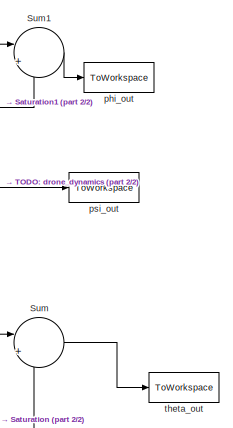
[diagram: root canvas - part 1/2, top right region]
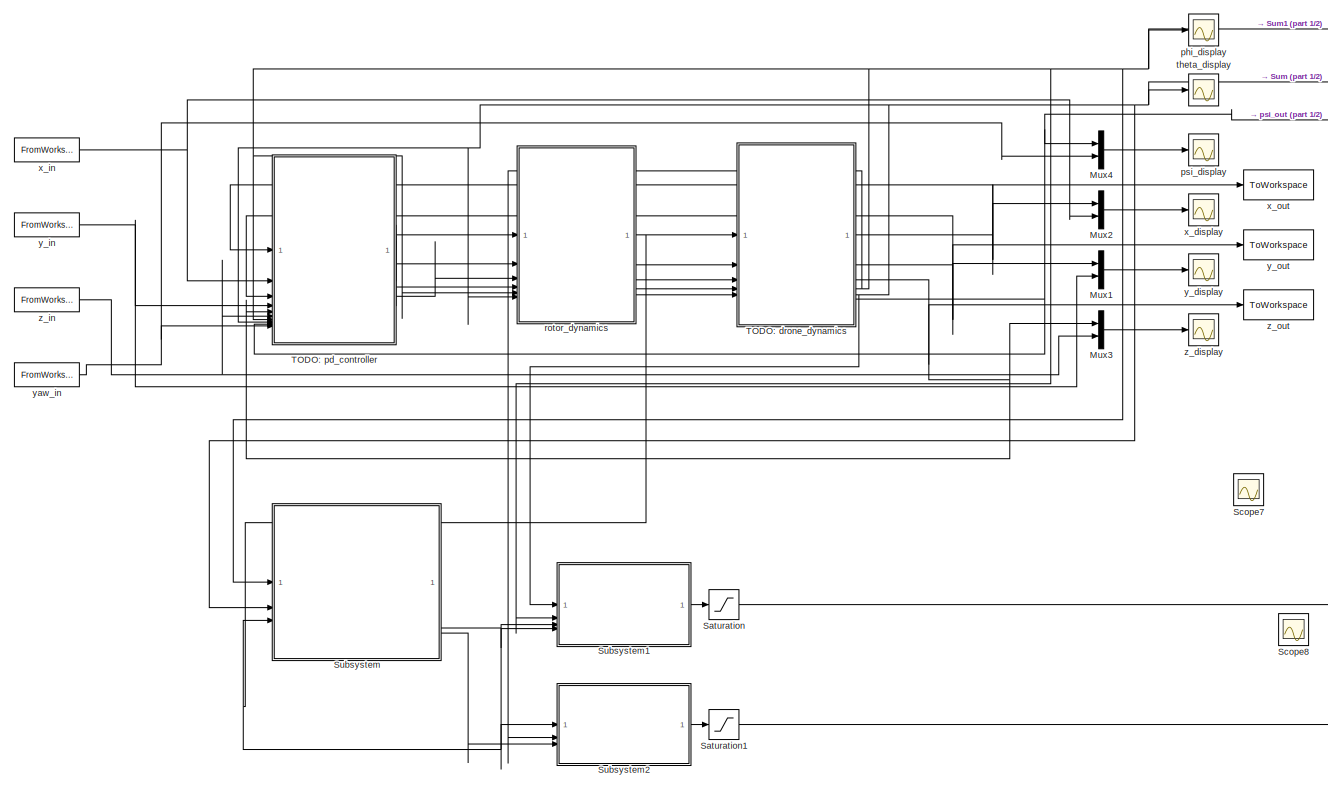
[diagram: root canvas - part 2/2, most of the canvas]
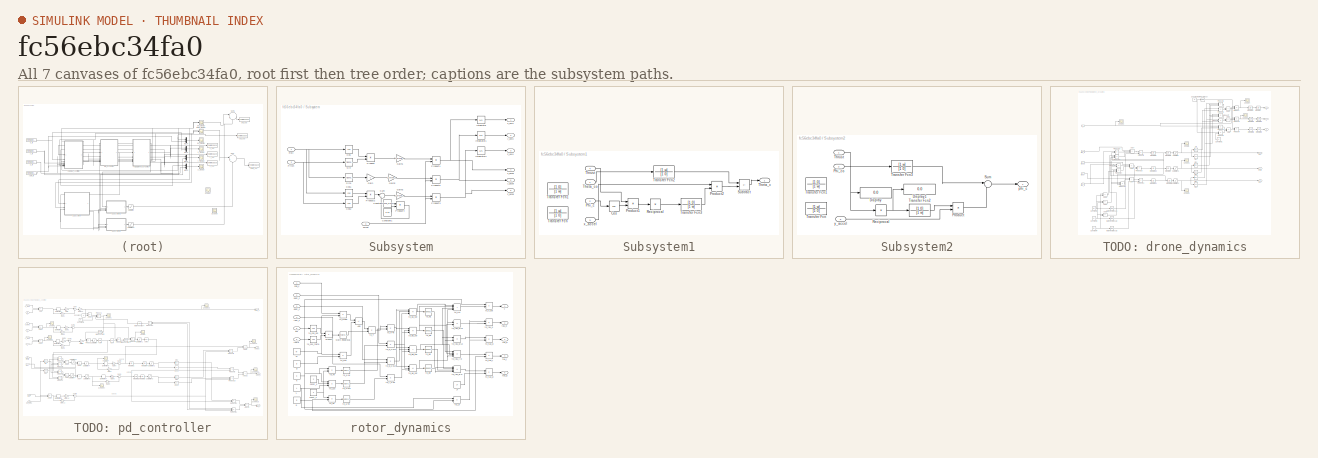
[diagram: thumbnail index - all 7 canvases of the model, root first then tree order]
MODEL slx_fc56ebc34fa0
KIND model
CONFIG AbsTol = auto
CONFIG EnableMultiTasking = on
CONFIG FixedStep = auto
CONFIG MaxStep = auto
CONFIG MinStep = auto
CONFIG RelTol = 1e-3
CONFIG SampleTimeConstraint = Unconstrained
CONFIG SolverName = ode45
CONFIG StartTime = 0.0
CONFIG StopTime = 50
BLOCK [Mux] Mux1
  DisplayOption = bar
  Inputs = 2
BLOCK [Mux] Mux2
  DisplayOption = bar
  Inputs = 2
BLOCK [Mux] Mux3
  DisplayOption = bar
  Inputs = 2
BLOCK [Mux] Mux4
  DisplayOption = bar
  Inputs = 2
BLOCK [Saturate] Saturation
  LowerLimit = -160
  UpperLimit = 160
BLOCK [Saturate] Saturation1
  LowerLimit = -160
  UpperLimit = 160
BLOCK [Scope] Scope7
  ActiveDisplayYMaximum = 2.5090035346084125
  ActiveDisplayYMinimum = -1.6883197970171271
  DataLoggingVariableName = ScopeData12
  Floating = off
  GraphicalSettings = {"AxesScalingProperties":{"AlignXAxis":"Center","AlignYAxis":"Center","AutoScaleXAxisLimits":false,"AxesScaling":"Manual","AxesScalingNumUpdates":10,"ExpandOnly":true,"ScaleAxesLimitsAtStop":false,"XAxisDataRange":100,"YAxisDataRange":80},"DisplayProperties":{"ColorOrder":["auto","auto","auto","auto","auto","auto","auto","auto","auto","auto","auto","auto","auto","auto","auto","auto","auto","auto",...<+1903ch>
  MultipleDisplayCache = [{"MaxYLimMag":10,"MaxYLimReal":2.5090035346084125,"MinYLimMag":0,"MinYLimReal":-1.6883197970171271,"PlotAsMagnitudePhase":false,"ShowGrid":true,"ShowLegend":false,"Title":"%<SignalLabel>","YLabel":""}]
  NumInputPorts = 1
  ScopeFrameLocation = window
  WasSavedAsWebScope = on
  WindowPosition = [42.000000,255.000000,560.000000,420.000000,]
BLOCK [Scope] Scope8
  ActiveDisplayYMaximum = 1.0700258804030376
  ActiveDisplayYMinimum = -0.67404865904457345
  DataLoggingVariableName = ScopeData10
  Floating = off
  GraphicalSettings = {"AxesScalingProperties":{"AlignXAxis":"Center","AlignYAxis":"Center","AutoScaleXAxisLimits":false,"AxesScaling":"Manual","AxesScalingNumUpdates":10,"ExpandOnly":true,"ScaleAxesLimitsAtStop":false,"XAxisDataRange":100,"YAxisDataRange":80},"DisplayProperties":{"ColorOrder":["auto","auto","auto","auto","auto","auto","auto","auto","auto","auto","auto","auto","auto","auto","auto","auto","auto","auto",...<+1903ch>
  MultipleDisplayCache = [{"MaxYLimMag":10,"MaxYLimReal":1.0700258804030376,"MinYLimMag":0,"MinYLimReal":-0.67404865904457345,"PlotAsMagnitudePhase":false,"ShowGrid":true,"ShowLegend":false,"Title":"%<SignalLabel>","YLabel":""}]
  NumInputPorts = 1
  ScopeFrameLocation = window
  WasSavedAsWebScope = on
  WindowPosition = [649.000000,248.000000,560.000000,420.000000,]
BLOCK [SubSystem] Subsystem
BLOCK [Constant] Subsystem/Constant
  Value = drone_mass
BLOCK [Constant] Subsystem/Constant1
  Value = 9.81
BLOCK [Trigonometry] Subsystem/Cos
  Operator = cos
BLOCK [Trigonometry] Subsystem/Cos1
  Operator = cos
BLOCK [Trigonometry] Subsystem/Cos2
  Operator = cos
BLOCK [Gain] Subsystem/Gain
  Gain = -1
BLOCK [Gain] Subsystem/Gain1
  Gain = 1/drone_mass
BLOCK [Gain] Subsystem/Gain2
  Gain = 1/drone_mass
BLOCK [Gain] Subsystem/Gain3
  Gain = 1/drone_mass
BLOCK [Integrator] Subsystem/Integrator
BLOCK [Integrator] Subsystem/Integrator1
BLOCK [Integrator] Subsystem/Integrator2
BLOCK [Inport] Subsystem/Pitch
  Port = 2
BLOCK [Product] Subsystem/Product
BLOCK [Product] Subsystem/Product1
BLOCK [Product] Subsystem/Product2
BLOCK [Product] Subsystem/Product3
BLOCK [Product] Subsystem/Product4
BLOCK [Product] Subsystem/Product5
BLOCK [Inport] Subsystem/Roll
BLOCK [Trigonometry] Subsystem/Sin
BLOCK [Trigonometry] Subsystem/Sin1
BLOCK [Sum] Subsystem/Sum
  Inputs = |+-
BLOCK [Inport] Subsystem/Thrust
  Port = 3
BLOCK [Outport] Subsystem/x_accel
  Port = 4
BLOCK [Outport] Subsystem/x_velo
BLOCK [Outport] Subsystem/y_accel
  Port = 5
BLOCK [Outport] Subsystem/y_velo
  Port = 2
BLOCK [Outport] Subsystem/z_accel
  Port = 6
BLOCK [Outport] Subsystem/z_velo
  Port = 3
BLOCK [SubSystem] Subsystem1
BLOCK [Trigonometry] Subsystem1/Cos
  Operator = cos
BLOCK [Inport] Subsystem1/Phi_c
  Port = 2
BLOCK [Product] Subsystem1/Product1
BLOCK [Product] Subsystem1/Product2
BLOCK [Product] Subsystem1/Reciprocal
  Inputs = /
BLOCK [Sum] Subsystem1/Subtract
  IconShape = rectangular
  Inputs = +-
BLOCK [Outport] Subsystem1/Theta_c
BLOCK [Inport] Subsystem1/Theta_co
BLOCK [Inport] Subsystem1/Thrust
  Port = 4
BLOCK [TransferFcn] Subsystem1/Transfer Fcn
  Denominator = [1 0]
  Numerator = [1 w]
BLOCK [TransferFcn] Subsystem1/Transfer Fcn1
  Denominator = [1 w]
  Numerator = [1 0]
BLOCK [TransferFcn] Subsystem1/Transfer Fcn2
  Denominator = [1 0]
  Numerator = [1 w]
BLOCK [TransferFcn] Subsystem1/Transfer Fcn3
  Denominator = [1 w]
  Numerator = [1 0]
BLOCK [Inport] Subsystem1/x_accel
  Port = 3
BLOCK [SubSystem] Subsystem2
BLOCK [Display] Subsystem2/Display
  Decimation = 1
BLOCK [Display] Subsystem2/Display1
  Decimation = 1
BLOCK [Inport] Subsystem2/Phi_co
  Port = 2
BLOCK [Product] Subsystem2/Product
BLOCK [Product] Subsystem2/Reciprocal
  Inputs = /
BLOCK [Sum] Subsystem2/Sum
  Inputs = |++
BLOCK [Inport] Subsystem2/Thrust
BLOCK [TransferFcn] Subsystem2/Transfer Fcn
  Denominator = [1 0]
  Numerator = [1 w]
BLOCK [TransferFcn] Subsystem2/Transfer Fcn1
  Denominator = [1 w]
  Numerator = [1 0]
BLOCK [TransferFcn] Subsystem2/Transfer Fcn2
  Denominator = [1 w]
  Numerator = [1 0]
BLOCK [TransferFcn] Subsystem2/Transfer Fcn3
  Denominator = [1 0]
  Numerator = [1 w]
BLOCK [Outport] Subsystem2/phi_c
BLOCK [Inport] Subsystem2/y_accel
  Port = 3
BLOCK [Sum] Sum
  Inputs = |++
BLOCK [Sum] Sum1
  Inputs = |++
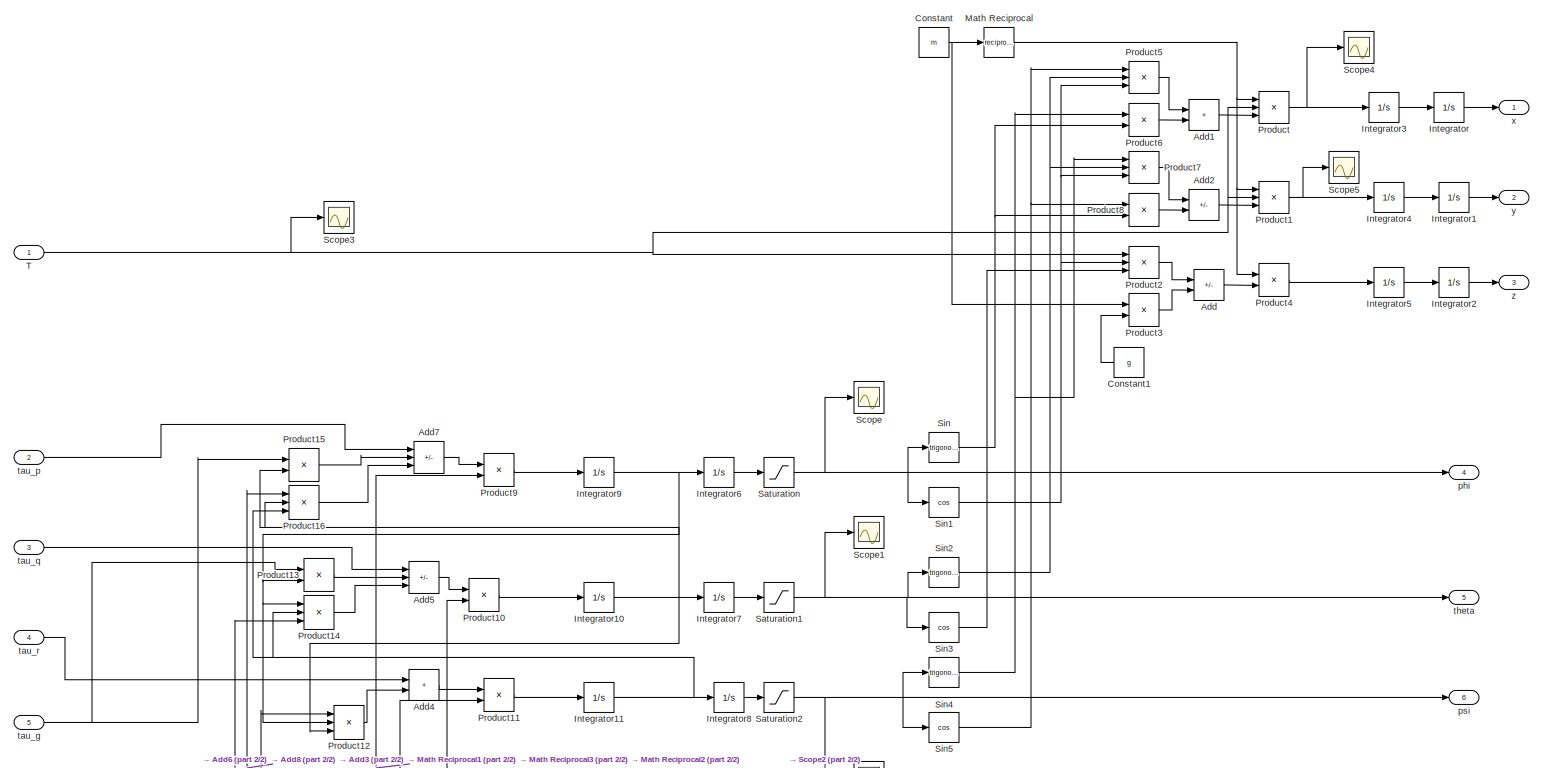
[diagram: TODO: drone_dynamics - part 1/2, full width, middle band]
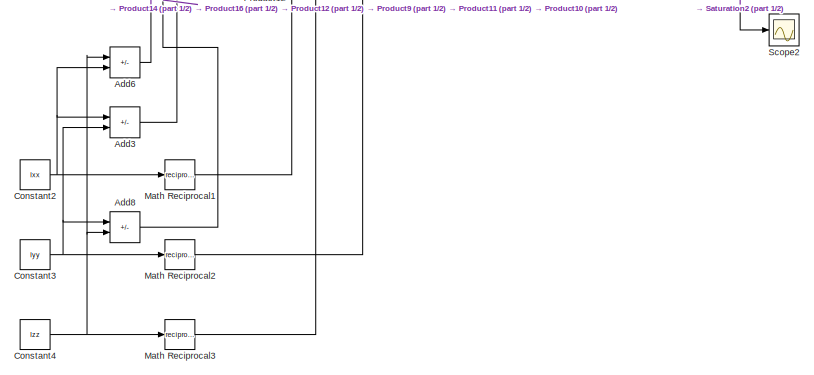
[diagram: TODO: drone_dynamics - part 2/2, bottom left region]
BLOCK [SubSystem] TODO: drone_dynamics
BLOCK [Sum] TODO: drone_dynamics/Add
  IconShape = rectangular
  Inputs = +-
BLOCK [Sum] TODO: drone_dynamics/Add1
  IconShape = rectangular
BLOCK [Sum] TODO: drone_dynamics/Add2
  IconShape = rectangular
  Inputs = +-
BLOCK [Sum] TODO: drone_dynamics/Add3
  IconShape = rectangular
  Inputs = +-
BLOCK [Sum] TODO: drone_dynamics/Add4
  IconShape = rectangular
BLOCK [Sum] TODO: drone_dynamics/Add5
  IconShape = rectangular
  Inputs = +-+
BLOCK [Sum] TODO: drone_dynamics/Add6
  IconShape = rectangular
  Inputs = +-
BLOCK [Sum] TODO: drone_dynamics/Add7
  IconShape = rectangular
  Inputs = +-+
BLOCK [Sum] TODO: drone_dynamics/Add8
  IconShape = rectangular
  Inputs = +-
BLOCK [Constant] TODO: drone_dynamics/Constant
  Value = m
BLOCK [Constant] TODO: drone_dynamics/Constant1
  Value = g
BLOCK [Constant] TODO: drone_dynamics/Constant2
  Value = Ixx
BLOCK [Constant] TODO: drone_dynamics/Constant3
  Value = Iyy
BLOCK [Constant] TODO: drone_dynamics/Constant4
  Value = Izz
BLOCK [Integrator] TODO: drone_dynamics/Integrator
BLOCK [Integrator] TODO: drone_dynamics/Integrator1
BLOCK [Integrator] TODO: drone_dynamics/Integrator10
BLOCK [Integrator] TODO: drone_dynamics/Integrator11
BLOCK [Integrator] TODO: drone_dynamics/Integrator2
BLOCK [Integrator] TODO: drone_dynamics/Integrator3
BLOCK [Integrator] TODO: drone_dynamics/Integrator4
BLOCK [Integrator] TODO: drone_dynamics/Integrator5
BLOCK [Integrator] TODO: drone_dynamics/Integrator6
BLOCK [Integrator] TODO: drone_dynamics/Integrator7
BLOCK [Integrator] TODO: drone_dynamics/Integrator8
  WrappedStateLowerValue = 0
  WrappedStateUpperValue = 2*pi
BLOCK [Integrator] TODO: drone_dynamics/Integrator9
BLOCK [Math] TODO: drone_dynamics/Math Reciprocal
  Operator = reciprocal
  SignedPower = on
BLOCK [Math] TODO: drone_dynamics/Math Reciprocal1
  Operator = reciprocal
  SignedPower = on
BLOCK [Math] TODO: drone_dynamics/Math Reciprocal2
  Operator = reciprocal
  SignedPower = on
BLOCK [Math] TODO: drone_dynamics/Math Reciprocal3
  Operator = reciprocal
  SignedPower = on
BLOCK [Product] TODO: drone_dynamics/Product
  Inputs = 3
BLOCK [Product] TODO: drone_dynamics/Product1
  Inputs = 3
BLOCK [Product] TODO: drone_dynamics/Product10
BLOCK [Product] TODO: drone_dynamics/Product11
BLOCK [Product] TODO: drone_dynamics/Product12
  Inputs = 3
BLOCK [Product] TODO: drone_dynamics/Product13
BLOCK [Product] TODO: drone_dynamics/Product14
  Inputs = 3
BLOCK [Product] TODO: drone_dynamics/Product15
BLOCK [Product] TODO: drone_dynamics/Product16
  Inputs = 3
BLOCK [Product] TODO: drone_dynamics/Product2
  Inputs = 3
BLOCK [Product] TODO: drone_dynamics/Product3
BLOCK [Product] TODO: drone_dynamics/Product4
BLOCK [Product] TODO: drone_dynamics/Product5
  Inputs = 3
BLOCK [Product] TODO: drone_dynamics/Product6
BLOCK [Product] TODO: drone_dynamics/Product7
  Inputs = 3
BLOCK [Product] TODO: drone_dynamics/Product8
BLOCK [Product] TODO: drone_dynamics/Product9
BLOCK [Saturate] TODO: drone_dynamics/Saturation
  LowerLimit = -1
  UpperLimit = 1
BLOCK [Saturate] TODO: drone_dynamics/Saturation1
  LowerLimit = -1
  UpperLimit = 1
BLOCK [Saturate] TODO: drone_dynamics/Saturation2
  LowerLimit = 0
  UpperLimit = 2*pi
BLOCK [Scope] TODO: drone_dynamics/Scope
  ActiveDisplayYMaximum = 3.15
  ActiveDisplayYMinimum = -3.15
  DataLoggingVariableName = ScopeData1
  Floating = off
  GraphicalSettings = {"GraphicalSettings":{"LegacySettings":true,"Style":{"AxesScalingProperties":{"ScaleAxesLimitsAtStop":false},"Style":{"AxesColor":"[0 0 0]","ChannelNames":[""],"ColorOrder":"[1 0.909803921568627 0.392156862745098;0.149019607843137 0.549019607843137 0.866666666666667;0.96078431372549 0.466666666666667 0.16078431372549;0.286274509803922 0.858823529411765 0.250980392156863;0.752941176470588 0.3607843...<+488ch>  <repeated x6 — deduplicated; at blocks: Scope, Scope17, Scope18, Scope19, Scope2, Scope3>
  MultipleDisplayCache = [{"MaxYLimMag":36.46515,"MaxYLimReal":3.15,"MinYLimMag":0,"MinYLimReal":-3.15,"PlotAsMagnitudePhase":false,"ShowGrid":true,"ShowLegend":false,"Title":"%<SignalLabel>","YLabel":""}]
  NumInputPorts = 1
  WasSavedAsWebScope = on
  WindowPosition = [1 54 1440 743]
BLOCK [Scope] TODO: drone_dynamics/Scope1
  ActiveDisplayYMaximum = 6E-10
  ActiveDisplayYMinimum = -4.8E-9
  DataLoggingVariableName = ScopeData2
  Floating = off
  GraphicalSettings = {"GraphicalSettings":{"LegacySettings":true,"Style":{"Style":{"AxesColor":"[0 0 0]","ChannelNames":[""],"ColorOrder":"[1 1 0.0666666666666667;0.0745098039215686 0.623529411764706 1;1 0.411764705882353 0.16078431372549;0.392156862745098 0.831372549019608 0.0745098039215686;0.717647058823529 0.274509803921569 1;0.0588235294117647 1 1;1 0.0745098039215686 0.650980392156863]","CurrentConfiguration":"e...<+343ch>
  MultipleDisplayCache = [{"MaxYLimMag":4.8E-9,"MaxYLimReal":6E-10,"MinYLimMag":0,"MinYLimReal":-4.8E-9,"PlotAsMagnitudePhase":false,"ShowGrid":true,"ShowLegend":false,"Title":"%<SignalLabel>","YLabel":""}]
  NumInputPorts = 1
  WasSavedAsWebScope = on
BLOCK [Scope] TODO: drone_dynamics/Scope2
  ActiveDisplayYMaximum = 7.08108
  ActiveDisplayYMinimum = -0.8979
  DataLoggingVariableName = ScopeData3
  Floating = off
  GraphicalSettings = {"GraphicalSettings":{"LegacySettings":true,"Style":{"Style":{"AxesColor":"[0 0 0]","ChannelNames":[""],"ColorOrder":"[1 0.909803921568627 0.392156862745098;0.149019607843137 0.549019607843137 0.866666666666667;0.96078431372549 0.466666666666667 0.16078431372549;0.286274509803922 0.858823529411765 0.250980392156863;0.752941176470588 0.36078431372549 0.984313725490196;0.423529411764706 0.9568627450...<+432ch>  <repeated x5 — deduplicated; at blocks: Scope2, Scope3, Scope4, Scope1, Scope16>
  MultipleDisplayCache = [{"MaxYLimMag":7.08108,"MaxYLimReal":7.08108,"MinYLimMag":0,"MinYLimReal":-0.8979,"PlotAsMagnitudePhase":false,"ShowGrid":true,"ShowLegend":false,"Title":"%<SignalLabel>","YLabel":""}]
  NumInputPorts = 1
  WasSavedAsWebScope = on
  WindowPosition = [1 54 1440 743]
BLOCK [Scope] TODO: drone_dynamics/Scope3
  ActiveDisplayYMaximum = 4.4753425626299984E+13
  ActiveDisplayYMinimum = -3.4849041226239738E+14
  DataLoggingVariableName = ScopeData4
  Floating = off
  MultipleDisplayCache = [{"MaxYLimMag":3.4849041226239738E+14,"MaxYLimReal":4.4753425626299984E+13,"MinYLimMag":0,"MinYLimReal":-3.4849041226239738E+14,"PlotAsMagnitudePhase":false,"ShowGrid":true,"ShowLegend":false,"Title":"%<SignalLabel>","YLabel":""}]
  NumInputPorts = 1
  WasSavedAsWebScope = on
BLOCK [Scope] TODO: drone_dynamics/Scope4
  ActiveDisplayYMaximum = 8.56477193990877E+11
  ActiveDisplayYMinimum = -1.5375275296905083E+12
  DataLoggingVariableName = ScopeData5
  Floating = off
  MultipleDisplayCache = [{"MaxYLimMag":1.5375275296905083E+12,"MaxYLimReal":8.56477193990877E+11,"MinYLimMag":0,"MinYLimReal":-1.5375275296905083E+12,"PlotAsMagnitudePhase":false,"ShowGrid":true,"ShowLegend":false,"Title":"%<SignalLabel>","YLabel":""}]
  NumInputPorts = 1
  WasSavedAsWebScope = on
BLOCK [Scope] TODO: drone_dynamics/Scope5
  DataLoggingVariableName = ScopeData6
  Floating = off
  GraphicalSettings = {"GraphicalSettings":{"LegacySettings":true,"Style":{"Style":{"CurrentConfiguration":"extmgr.ConfigurationSet","MinimizeControls":"false","PlotType":"Auto","Version":"2024b"}}}}
  NumInputPorts = 1
  WasSavedAsWebScope = on
BLOCK [Trigonometry] TODO: drone_dynamics/Sin
BLOCK [Trigonometry] TODO: drone_dynamics/Sin1
  Operator = cos
BLOCK [Trigonometry] TODO: drone_dynamics/Sin2
BLOCK [Trigonometry] TODO: drone_dynamics/Sin3
  Operator = cos
BLOCK [Trigonometry] TODO: drone_dynamics/Sin4
BLOCK [Trigonometry] TODO: drone_dynamics/Sin5
  Operator = cos
BLOCK [Inport] TODO: drone_dynamics/T
BLOCK [Outport] TODO: drone_dynamics/phi
  Port = 4
BLOCK [Outport] TODO: drone_dynamics/psi
  Port = 6
BLOCK [Inport] TODO: drone_dynamics/tau_g
  Port = 5
BLOCK [Inport] TODO: drone_dynamics/tau_p
  Port = 2
BLOCK [Inport] TODO: drone_dynamics/tau_q
  Port = 3
BLOCK [Inport] TODO: drone_dynamics/tau_r
  Port = 4
BLOCK [Outport] TODO: drone_dynamics/theta
  Port = 5
BLOCK [Outport] TODO: drone_dynamics/x
BLOCK [Outport] TODO: drone_dynamics/y
  Port = 2
BLOCK [Outport] TODO: drone_dynamics/z
  Port = 3
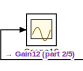
[diagram: TODO: pd_controller - part 1/5, top right region]
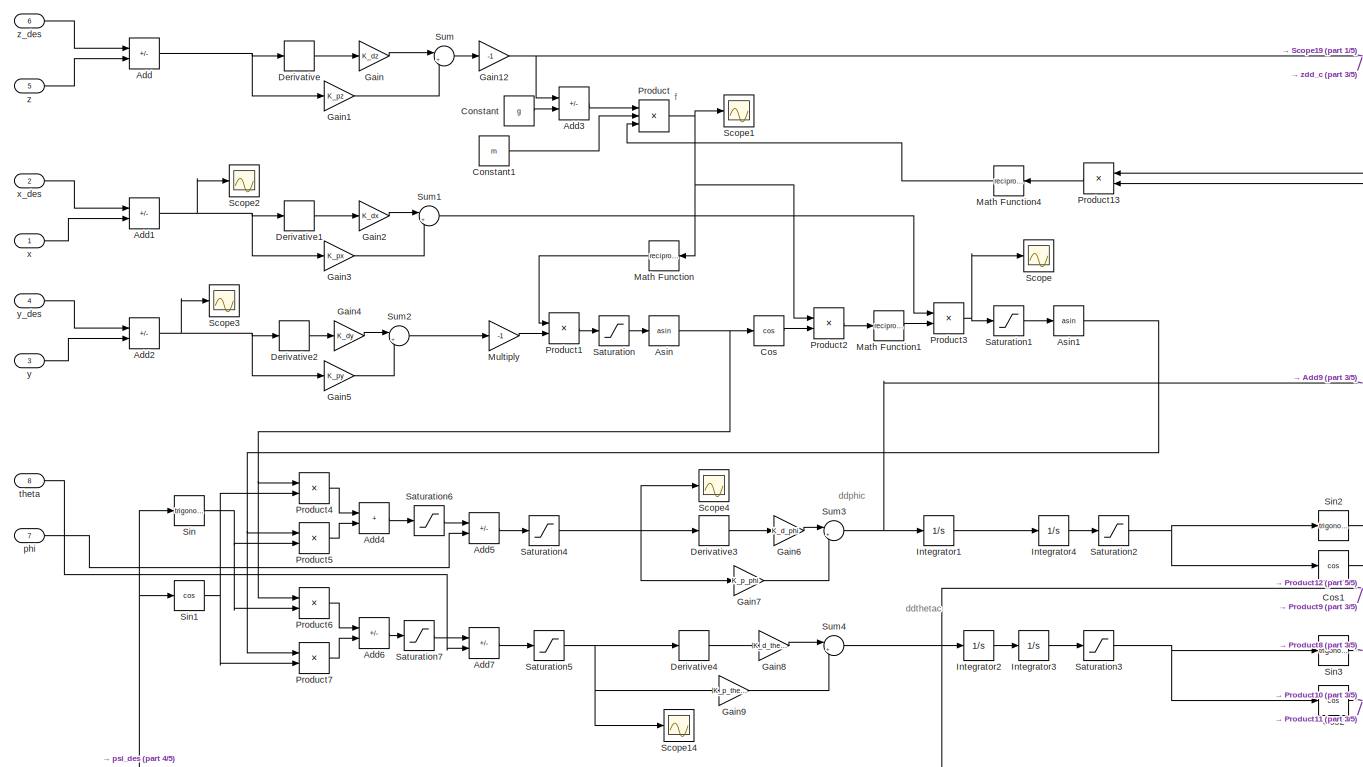
[diagram: TODO: pd_controller - part 2/5, left side, full height]
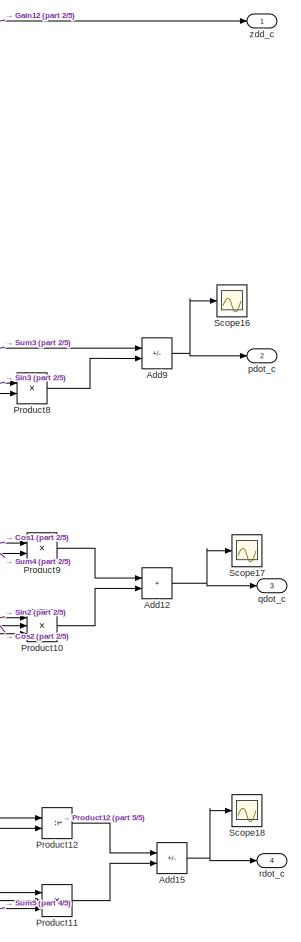
[diagram: TODO: pd_controller - part 3/5, right side, full height]
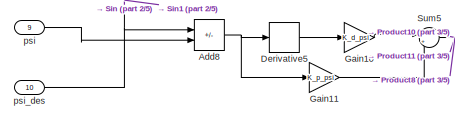
[diagram: TODO: pd_controller - part 4/5, bottom left region]
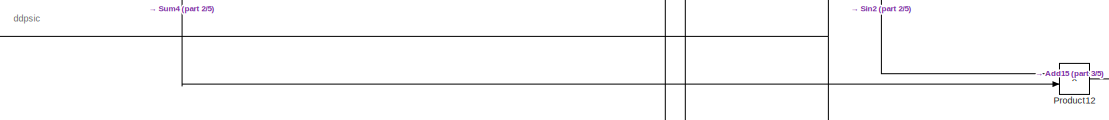
[diagram: TODO: pd_controller - part 5/5, bottom center region]
BLOCK [SubSystem] TODO: pd_controller
BLOCK [Sum] TODO: pd_controller/Add
  IconShape = rectangular
  Inputs = +-
BLOCK [Sum] TODO: pd_controller/Add1
  IconShape = rectangular
  Inputs = +-
BLOCK [Sum] TODO: pd_controller/Add12
  IconShape = rectangular
BLOCK [Sum] TODO: pd_controller/Add15
  IconShape = rectangular
  Inputs = -+
BLOCK [Sum] TODO: pd_controller/Add2
  IconShape = rectangular
  Inputs = +-
BLOCK [Sum] TODO: pd_controller/Add3
  IconShape = rectangular
  Inputs = -+
BLOCK [Sum] TODO: pd_controller/Add4
  IconShape = rectangular
BLOCK [Sum] TODO: pd_controller/Add5
  IconShape = rectangular
  Inputs = +-
BLOCK [Sum] TODO: pd_controller/Add6
  IconShape = rectangular
  Inputs = -+
BLOCK [Sum] TODO: pd_controller/Add7
  IconShape = rectangular
  Inputs = +-
BLOCK [Sum] TODO: pd_controller/Add8
  IconShape = rectangular
  Inputs = +-
BLOCK [Sum] TODO: pd_controller/Add9
  IconShape = rectangular
  Inputs = +-
BLOCK [Trigonometry] TODO: pd_controller/Asin
  Operator = asin
BLOCK [Trigonometry] TODO: pd_controller/Asin1
  Operator = asin
BLOCK [Constant] TODO: pd_controller/Constant
  Value = g
BLOCK [Constant] TODO: pd_controller/Constant1
  Value = m
BLOCK [Trigonometry] TODO: pd_controller/Cos
  Operator = cos
BLOCK [Trigonometry] TODO: pd_controller/Cos1
  Operator = cos
BLOCK [Trigonometry] TODO: pd_controller/Cos2
  Operator = cos
BLOCK [Derivative] TODO: pd_controller/Derivative
BLOCK [Derivative] TODO: pd_controller/Derivative1
BLOCK [Derivative] TODO: pd_controller/Derivative2
BLOCK [Derivative] TODO: pd_controller/Derivative3
BLOCK [Derivative] TODO: pd_controller/Derivative4
BLOCK [Derivative] TODO: pd_controller/Derivative5
BLOCK [Gain] TODO: pd_controller/Gain
  Gain = K_dz
BLOCK [Gain] TODO: pd_controller/Gain1
  Gain = K_pz
BLOCK [Gain] TODO: pd_controller/Gain10
  Gain = K_d_psi
BLOCK [Gain] TODO: pd_controller/Gain11
  Gain = K_p_psi
BLOCK [Gain] TODO: pd_controller/Gain12
  Gain = -1
BLOCK [Gain] TODO: pd_controller/Gain2
  Gain = K_dx
BLOCK [Gain] TODO: pd_controller/Gain3
  Gain = K_px
BLOCK [Gain] TODO: pd_controller/Gain4
  Gain = K_dy
BLOCK [Gain] TODO: pd_controller/Gain5
  Gain = K_py
BLOCK [Gain] TODO: pd_controller/Gain6
  Gain = K_d_phi
BLOCK [Gain] TODO: pd_controller/Gain7
  Gain = K_p_phi
BLOCK [Gain] TODO: pd_controller/Gain8
  Gain = K_d_theta
BLOCK [Gain] TODO: pd_controller/Gain9
  Gain = K_p_theta
BLOCK [Integrator] TODO: pd_controller/Integrator1
BLOCK [Integrator] TODO: pd_controller/Integrator2
BLOCK [Integrator] TODO: pd_controller/Integrator3
BLOCK [Integrator] TODO: pd_controller/Integrator4
BLOCK [Math] TODO: pd_controller/Math Function
  Operator = reciprocal
BLOCK [Math] TODO: pd_controller/Math Function1
  Operator = reciprocal
BLOCK [Math] TODO: pd_controller/Math Function4
  Operator = reciprocal
BLOCK [Gain] TODO: pd_controller/Multiply
  Gain = -1
BLOCK [Product] TODO: pd_controller/Product
  Inputs = 3
BLOCK [Product] TODO: pd_controller/Product1
BLOCK [Product] TODO: pd_controller/Product10
  Inputs = 3
BLOCK [Product] TODO: pd_controller/Product11
  Inputs = 3
BLOCK [Product] TODO: pd_controller/Product12
BLOCK [Product] TODO: pd_controller/Product13
BLOCK [Product] TODO: pd_controller/Product2
BLOCK [Product] TODO: pd_controller/Product3
BLOCK [Product] TODO: pd_controller/Product4
BLOCK [Product] TODO: pd_controller/Product5
BLOCK [Product] TODO: pd_controller/Product6
BLOCK [Product] TODO: pd_controller/Product7
BLOCK [Product] TODO: pd_controller/Product8
BLOCK [Product] TODO: pd_controller/Product9
BLOCK [Saturate] TODO: pd_controller/Saturation
  LowerLimit = -1
  UpperLimit = 1
  ZeroCross = off
BLOCK [Saturate] TODO: pd_controller/Saturation1
  LowerLimit = -1
  UpperLimit = 1
  ZeroCross = off
BLOCK [Saturate] TODO: pd_controller/Saturation2
  LowerLimit = -1
  UpperLimit = 1
  ZeroCross = off
BLOCK [Saturate] TODO: pd_controller/Saturation3
  LowerLimit = -1
  UpperLimit = 1
  ZeroCross = off
BLOCK [Saturate] TODO: pd_controller/Saturation4
  LowerLimit = -0.2
  UpperLimit = 0.2
  ZeroCross = off
BLOCK [Saturate] TODO: pd_controller/Saturation5
  LowerLimit = -0.1
  UpperLimit = 0.1
  ZeroCross = off
BLOCK [Saturate] TODO: pd_controller/Saturation6
  LowerLimit = -1
  UpperLimit = 1
  ZeroCross = off
BLOCK [Saturate] TODO: pd_controller/Saturation7
  LowerLimit = -1
  UpperLimit = 1
  ZeroCross = off
BLOCK [Scope] TODO: pd_controller/Scope
  ActiveDisplayYMaximum = 2E-10
  ActiveDisplayYMinimum = -3E-11
  DataLoggingVariableName = ScopeData7
  Floating = off
  GraphicalSettings = {"GraphicalSettings":{"LegacySettings":true,"Style":{"Style":{"AxesColor":"[0 0 0]","ChannelNames":[""],"ColorOrder":"[1 1 0.0666666666666667;0.0745098039215686 0.623529411764706 1;1 0.411764705882353 0.16078431372549;0.392156862745098 0.831372549019608 0.0745098039215686;0.717647058823529 0.274509803921569 1;0.0588235294117647 1 1;1 0.0745098039215686 0.650980392156863]","CurrentConfiguration":"e...<+343ch>
  MultipleDisplayCache = [{"MaxYLimMag":2E-10,"MaxYLimReal":2E-10,"MinYLimMag":0,"MinYLimReal":-3E-11,"PlotAsMagnitudePhase":false,"ShowGrid":true,"ShowLegend":false,"Title":"%<SignalLabel>","YLabel":""}]
  NumInputPorts = 1
  WasSavedAsWebScope = on
BLOCK [Scope] TODO: pd_controller/Scope1
  ActiveDisplayYMaximum = 5.24366948093118E+13
  ActiveDisplayYMinimum = -4.3522364874412031E+14
  DataLoggingVariableName = ScopeData1
  Floating = off
  MultipleDisplayCache = [{"MaxYLimMag":4.3522364874412031E+14,"MaxYLimReal":5.24366948093118E+13,"MinYLimMag":0,"MinYLimReal":-4.3522364874412031E+14,"PlotAsMagnitudePhase":false,"ShowGrid":true,"ShowLegend":false,"Title":"%<SignalLabel>","YLabel":""}]
  NumInputPorts = 1
  WasSavedAsWebScope = on
BLOCK [Scope] TODO: pd_controller/Scope14
  ActiveDisplayYMaximum = 2.2
  ActiveDisplayYMinimum = -2.2
  ContainerLayout = {"WindowBounds":[65,113,1293,804],"gridDimensions":{"w":1,"h":1},"tileCount":1,"tileCoverage":1,"columnWeights":1,"rowWeights":1,"tileOccupancy":{"children":[{"id":"/psi_display"},{"id":"/y_display"},{"id":"/x_display"},{"id":"/TODO: pd_controller/Scope4"},{"id":"/TODO: pd_controller/Scope14"},{"id":"/z_display"}]}}  <repeated x6 — deduplicated; at blocks: Scope14, Scope4, psi_display, x_display, y_display, z_display>
  DataLoggingVariableName = ScopeData13
  Floating = off
  GraphicalSettings = {"Style":{"BackgroundColor":[0.12941176470588237,0.12941176470588237,0.12941176470588237],"AxesColor":[0.07058823529411765,0.07058823529411765,0.07058823529411765],"LabelsColor":[0.8509803921568627,0.8509803921568627,0.8509803921568627],"PreserveColors":false,"Visible":[true],"LineStyle":["-"],"LineWidth":[0.75],"BarWidth":[0.9],"LineColor":[[1,0.9098039215686274,0.39215686274509803]],"LineFaceAlp...<+1966ch>
  MultipleDisplayCache = [{"MaxYLimMag":55.01333,"MaxYLimReal":2.2,"MinYLimMag":0,"MinYLimReal":-2.2,"PlotAsMagnitudePhase":false,"ShowGrid":true,"ShowLegend":false,"Title":"%<SignalLabel>","YLabel":""}]
  NumInputPorts = 1
  ScopeFrameLocation = container
  Visible = on
  WasSavedAsWebScope = on
  WindowPosition = [72.000000,50.000000,1280.000000,768.000000,]
BLOCK [Scope] TODO: pd_controller/Scope16
  ActiveDisplayYMaximum = 0.00408
  ActiveDisplayYMinimum = -0.00891
  DataLoggingVariableName = ScopeData15
  Floating = off
  MultipleDisplayCache = [{"MaxYLimMag":0.00891,"MaxYLimReal":0.00408,"MinYLimMag":0,"MinYLimReal":-0.00891,"PlotAsMagnitudePhase":false,"ShowGrid":true,"ShowLegend":false,"Title":"%<SignalLabel>","YLabel":""}]
  NumInputPorts = 1
  WasSavedAsWebScope = on
BLOCK [Scope] TODO: pd_controller/Scope17
  ActiveDisplayYMaximum = 0.01
  ActiveDisplayYMinimum = -0.01
  DataLoggingVariableName = ScopeData16
  Floating = off
  MultipleDisplayCache = [{"MaxYLimMag":55.01333,"MaxYLimReal":0.01,"MinYLimMag":0,"MinYLimReal":-0.01,"PlotAsMagnitudePhase":false,"ShowGrid":true,"ShowLegend":false,"Title":"%<SignalLabel>","YLabel":""}]
  NumInputPorts = 1
  WasSavedAsWebScope = on
  WindowPosition = [1 54 1440 743]
BLOCK [Scope] TODO: pd_controller/Scope18
  ActiveDisplayYMaximum = 1.1
  ActiveDisplayYMinimum = -1.1
  DataLoggingVariableName = ScopeData17
  Floating = off
  MultipleDisplayCache = [{"MaxYLimMag":55.01333,"MaxYLimReal":1.1,"MinYLimMag":0,"MinYLimReal":-1.1,"PlotAsMagnitudePhase":false,"ShowGrid":true,"ShowLegend":false,"Title":"%<SignalLabel>","YLabel":""}]
  NumInputPorts = 1
  WasSavedAsWebScope = on
  WindowPosition = [1 54 1440 743]
BLOCK [Scope] TODO: pd_controller/Scope19
  ActiveDisplayYMaximum = 2.2541333614408321E+10
  ActiveDisplayYMinimum = -3.30547176345424E+9
  DataLoggingVariableName = ScopeData18
  Floating = off
  MultipleDisplayCache = [{"MaxYLimMag":2.2541333614408321E+10,"MaxYLimReal":2.2541333614408321E+10,"MinYLimMag":0,"MinYLimReal":-3.30547176345424E+9,"PlotAsMagnitudePhase":false,"ShowGrid":true,"ShowLegend":false,"Title":"%<SignalLabel>","YLabel":""}]
  NumInputPorts = 1
  WasSavedAsWebScope = on
  WindowPosition = [1 54 1440 743]
BLOCK [Scope] TODO: pd_controller/Scope2
  ActiveDisplayYMaximum = 15
  ActiveDisplayYMinimum = -15
  DataLoggingVariableName = ScopeData2
  Floating = off
  MultipleDisplayCache = [{"MaxYLimMag":55.01333,"MaxYLimReal":15,"MinYLimMag":0,"MinYLimReal":-15,"PlotAsMagnitudePhase":false,"ShowGrid":true,"ShowLegend":false,"Title":"%<SignalLabel>","YLabel":""}]
  NumInputPorts = 1
  WasSavedAsWebScope = on
  WindowPosition = [1 54 1440 743]
BLOCK [Scope] TODO: pd_controller/Scope3
  DataLoggingVariableName = ScopeData3
  Floating = off
  MultipleDisplayCache = [{"MaxYLimMag":55.01333,"MaxYLimReal":10,"MinYLimMag":0,"MinYLimReal":-10,"PlotAsMagnitudePhase":false,"ShowGrid":true,"ShowLegend":false,"Title":"%<SignalLabel>","YLabel":""}]
  NumInputPorts = 1
  WasSavedAsWebScope = on
  WindowPosition = [1 54 1440 741]
BLOCK [Scope] TODO: pd_controller/Scope4
  ActiveDisplayYMaximum = 0.25
  ActiveDisplayYMinimum = -0.25
  DataLoggingVariableName = ScopeData4
  Floating = off
  GraphicalSettings = {"Style":{"BackgroundColor":[0.12941176470588237,0.12941176470588237,0.12941176470588237],"AxesColor":[0.07058823529411765,0.07058823529411765,0.07058823529411765],"LabelsColor":[0.8509803921568627,0.8509803921568627,0.8509803921568627],"PreserveColors":false,"Visible":[true],"LineStyle":["-"],"LineWidth":[1.5],"BarWidth":[0.9],"LineColor":["auto"],"LineFaceAlpha":[1],"LineEdgeAlpha":[1],"Marker":...<+1924ch>
  MultipleDisplayCache = [{"MaxYLimMag":0.25,"MaxYLimReal":0.25,"MinYLimMag":0,"MinYLimReal":-0.25,"PlotAsMagnitudePhase":false,"ShowGrid":true,"ShowLegend":false,"Title":"%<SignalLabel>","YLabel":""}]
  NumInputPorts = 1
  ScopeFrameLocation = container
  Visible = on
  WasSavedAsWebScope = on
  WindowPosition = [72.000000,50.000000,1280.000000,768.000000,]
BLOCK [Trigonometry] TODO: pd_controller/Sin
BLOCK [Trigonometry] TODO: pd_controller/Sin1
  Operator = cos
BLOCK [Trigonometry] TODO: pd_controller/Sin2
BLOCK [Trigonometry] TODO: pd_controller/Sin3
BLOCK [Sum] TODO: pd_controller/Sum
  Inputs = |++
BLOCK [Sum] TODO: pd_controller/Sum1
  Inputs = |++
BLOCK [Sum] TODO: pd_controller/Sum2
  Inputs = |++
BLOCK [Sum] TODO: pd_controller/Sum3
  Inputs = |++
BLOCK [Sum] TODO: pd_controller/Sum4
  Inputs = |++
BLOCK [Sum] TODO: pd_controller/Sum5
  Inputs = |++
BLOCK [Outport] TODO: pd_controller/pdot_c
  Port = 2
BLOCK [Inport] TODO: pd_controller/phi
  Port = 7
BLOCK [Inport] TODO: pd_controller/psi
  Port = 9
BLOCK [Inport] TODO: pd_controller/psi_des
  Port = 10
BLOCK [Outport] TODO: pd_controller/qdot_c
  Port = 3
BLOCK [Outport] TODO: pd_controller/rdot_c
  Port = 4
BLOCK [Inport] TODO: pd_controller/theta
  Port = 8
BLOCK [Inport] TODO: pd_controller/x
BLOCK [Inport] TODO: pd_controller/x_des
  Port = 2
BLOCK [Inport] TODO: pd_controller/y
  Port = 3
BLOCK [Inport] TODO: pd_controller/y_des
  Port = 4
BLOCK [Inport] TODO: pd_controller/z
  Port = 5
BLOCK [Inport] TODO: pd_controller/z_des
  Port = 6
BLOCK [Outport] TODO: pd_controller/zdd_c
BLOCK [Scope] phi_display
  ActiveDisplayYMaximum = 3.14
  ActiveDisplayYMinimum = -3.14
  DataLoggingDecimateData = on
  DataLoggingDecimation = 1
  DataLoggingSaveFormat = Structure With Time
  DataLoggingVariableName = ScopeData1
  Floating = off
  GraphicalSettings = {"GraphicalSettings":{"LegacySettings":true,"Style":{"AxesScalingProperties":{"ScaleAxesLimitsAtStop":false},"Style":{"AxesColor":"[0 0 0]","ChannelNames":[""],"ColorOrder":"[1 0.909803921568627 0.392156862745098;0.149019607843137 0.549019607843137 0.866666666666667;0.96078431372549 0.466666666666667 0.16078431372549;0.286274509803922 0.858823529411765 0.250980392156863;0.752941176470588 0.3607843...<+517ch>
  MultipleDisplayCache = [{"MaxYLimMag":48.30659,"MaxYLimReal":3.14,"MinYLimMag":0,"MinYLimReal":-3.14,"PlotAsMagnitudePhase":false,"ShowGrid":true,"ShowLegend":false,"Title":"%<SignalLabel>","YLabel":""}]
  NumInputPorts = 1
  WasSavedAsWebScope = on
  WindowPosition = [244 114 724 495]
BLOCK [ToWorkspace] phi_out
  FixptAsFi = on
  MaxDataPoints = inf
  SampleTime = -1
  SaveFormat = Timeseries
  VariableName = phi_out
BLOCK [Scope] psi_display
  ActiveDisplayYMaximum = 7.0685834705770345
  ActiveDisplayYMinimum = -0.78539816339744806
  DataLoggingDecimateData = on
  DataLoggingDecimation = 1
  DataLoggingSaveFormat = Structure With Time
  DataLoggingVariableName = ScopeData2
  Floating = off
  GraphicalSettings = {"Style":{"BackgroundColor":[0.12941176470588237,0.12941176470588237,0.12941176470588237],"AxesColor":[0.07058823529411765,0.07058823529411765,0.07058823529411765],"LabelsColor":[0.8509803921568627,0.8509803921568627,0.8509803921568627],"PreserveColors":false,"Visible":[true,true],"LineStyle":["-","-"],"LineWidth":[1.5,1.5],"BarWidth":[0.9,0.9],"LineColor":["auto","auto"],"LineFaceAlpha":[1,1],"Li...<+2075ch>
  MultipleDisplayCache = [{"MaxYLimMag":7.0685834705770345,"MaxYLimReal":7.0685834705770345,"MinYLimMag":0,"MinYLimReal":-0.78539816339744806,"PlotAsMagnitudePhase":false,"ShowGrid":true,"ShowLegend":false,"Title":"%<SignalLabel>","YLabel":""}]
  NumInputPorts = 1
  ScopeFrameLocation = container
  Visible = on
  WasSavedAsWebScope = on
  WindowPosition = [72.000000,50.000000,1280.000000,768.000000,]
BLOCK [ToWorkspace] psi_out
  FixptAsFi = on
  MaxDataPoints = inf
  SampleTime = -1
  SaveFormat = Timeseries
  VariableName = psi_out
BLOCK [SubSystem] rotor_dynamics
BLOCK [Sum] rotor_dynamics/Add
  IconShape = rectangular
  Inputs = -+
BLOCK [Constant] rotor_dynamics/Jr
  Value = Jr
BLOCK [Constant] rotor_dynamics/L
  Value = L
BLOCK [Math] rotor_dynamics/Math Reciprocal
  Operator = reciprocal
  SignedPower = on
BLOCK [Product] rotor_dynamics/Product
BLOCK [Outport] rotor_dynamics/T
BLOCK [Constant] rotor_dynamics/b
  Value = b
BLOCK [Constant] rotor_dynamics/const_2
  Value = 2
BLOCK [Constant] rotor_dynamics/const_4
  Value = 4
BLOCK [Constant] rotor_dynamics/g
  Value = g
BLOCK [Constant] rotor_dynamics/k
  Value = k
BLOCK [Constant] rotor_dynamics/m
  Value = m
BLOCK [Inport] rotor_dynamics/pdot_c
  Port = 2
BLOCK [Inport] rotor_dynamics/phi
  Port = 5
BLOCK [Inport] rotor_dynamics/qdot_c
  Port = 3
BLOCK [Inport] rotor_dynamics/rdot_c
  Port = 4
BLOCK [Outport] rotor_dynamics/tau_g
  Port = 5
BLOCK [Outport] rotor_dynamics/tau_p
  Port = 2
BLOCK [Outport] rotor_dynamics/tau_q
  Port = 3
BLOCK [Outport] rotor_dynamics/tau_r
  Port = 4
BLOCK [Inport] rotor_dynamics/theta
  Port = 6
BLOCK [Math] rotor_dynamics/to_1//2Lk
  Operator = reciprocal
  SignedPower = on
BLOCK [Math] rotor_dynamics/to_1//4b
  Operator = reciprocal
  SignedPower = on
BLOCK [Math] rotor_dynamics/to_1//4k
  Operator = reciprocal
  SignedPower = on
BLOCK [Product] rotor_dynamics/to_2Lk
  Inputs = 3
BLOCK [Product] rotor_dynamics/to_4b
BLOCK [Product] rotor_dynamics/to_4k
BLOCK [Product] rotor_dynamics/to_Lk
BLOCK [Product] rotor_dynamics/to_T
BLOCK [Product] rotor_dynamics/to_T//4k
BLOCK [Sum] rotor_dynamics/to_T//k
  IconShape = rectangular
  Inputs = ++++
BLOCK [Product] rotor_dynamics/to_T_out
BLOCK [Trigonometry] rotor_dynamics/to_cos_phi
  Operator = cos
BLOCK [Trigonometry] rotor_dynamics/to_cos_theta
  Operator = cos
BLOCK [Product] rotor_dynamics/to_mddz
BLOCK [Product] rotor_dynamics/to_mg
BLOCK [Product] rotor_dynamics/to_p_c//2Lk
BLOCK [Product] rotor_dynamics/to_q_c//2Lk
BLOCK [Product] rotor_dynamics/to_r_c//4b
BLOCK [Product] rotor_dynamics/to_tau_g
BLOCK [Sum] rotor_dynamics/to_tau_g//Jr
  IconShape = rectangular
  Inputs = +-+-
BLOCK [Product] rotor_dynamics/to_tau_p
BLOCK [Sum] rotor_dynamics/to_tau_p//Lk
  IconShape = rectangular
  Inputs = +-
BLOCK [Product] rotor_dynamics/to_tau_q
BLOCK [Sum] rotor_dynamics/to_tau_q//Lk
  IconShape = rectangular
  Inputs = +-
BLOCK [Product] rotor_dynamics/to_tau_r
BLOCK [Sum] rotor_dynamics/to_tau_r//b
  IconShape = rectangular
  Inputs = +-+-
BLOCK [Sqrt] rotor_dynamics/to_w1
  Operator = signedSqrt
BLOCK [Sum] rotor_dynamics/to_w1_sqr
  IconShape = rectangular
  Inputs = +-+
BLOCK [Sqrt] rotor_dynamics/to_w2
  Operator = signedSqrt
BLOCK [Sum] rotor_dynamics/to_w2_sqr
  IconShape = rectangular
  Inputs = +--
BLOCK [Sqrt] rotor_dynamics/to_w3
  Operator = signedSqrt
BLOCK [Sum] rotor_dynamics/to_w3_sqr
  IconShape = rectangular
  Inputs = +++
BLOCK [Sqrt] rotor_dynamics/to_w4
  Operator = signedSqrt
BLOCK [Sum] rotor_dynamics/to_w4_sqr
  IconShape = rectangular
  Inputs = ++-
BLOCK [Inport] rotor_dynamics/zdd_c
BLOCK [Scope] theta_display
  ActiveDisplayYMaximum = 3.14
  ActiveDisplayYMinimum = -3.14
  DataLoggingDecimateData = on
  DataLoggingDecimation = 1
  DataLoggingSaveFormat = Structure With Time
  DataLoggingVariableName = ScopeData3
  Floating = off
  GraphicalSettings = {"GraphicalSettings":{"LegacySettings":true,"Style":{"AxesScalingProperties":{"ScaleAxesLimitsAtStop":false},"Style":{"AxesColor":"[0 0 0]","ChannelNames":[""],"ColorOrder":"[1 0.909803921568627 0.392156862745098;0.149019607843137 0.549019607843137 0.866666666666667;0.96078431372549 0.466666666666667 0.16078431372549;0.286274509803922 0.858823529411765 0.250980392156863;0.752941176470588 0.3607843...<+513ch>
  MultipleDisplayCache = [{"MaxYLimMag":1.26378,"MaxYLimReal":3.14,"MinYLimMag":0,"MinYLimReal":-3.14,"PlotAsMagnitudePhase":false,"ShowGrid":true,"ShowLegend":false,"Title":"%<SignalLabel>","YLabel":""}]
  NumInputPorts = 1
  WasSavedAsWebScope = on
  WindowPosition = [244 114 925 473]
BLOCK [ToWorkspace] theta_out
  FixptAsFi = on
  MaxDataPoints = inf
  SampleTime = -1
  SaveFormat = Timeseries
  VariableName = theta_out
BLOCK [Scope] x_display
  ActiveDisplayYMinimum = -200
  DataLoggingDecimation = 1
  DataLoggingSaveFormat = Structure With Time
  DataLoggingVariableName = ScopeData4
  Floating = off
  GraphicalSettings = {"Style":{"BackgroundColor":[0.12941176470588237,0.12941176470588237,0.12941176470588237],"AxesColor":[0.07058823529411765,0.07058823529411765,0.07058823529411765],"LabelsColor":[0.8509803921568627,0.8509803921568627,0.8509803921568627],"PreserveColors":false,"Visible":[true,true],"LineStyle":["-","-"],"LineWidth":[1.5,1.5],"BarWidth":[0.9,0.9],"LineColor":["auto","auto"],"LineFaceAlpha":[1,1],"Li...<+2060ch>
  MultipleDisplayCache = [{"MaxYLimMag":210.74959,"MaxYLimReal":10,"MinYLimMag":0,"MinYLimReal":-200,"PlotAsMagnitudePhase":false,"ShowGrid":true,"ShowLegend":false,"Title":"%<SignalLabel>","YLabel":""}]
  NumInputPorts = 1
  ScopeFrameLocation = container
  Visible = on
  WasSavedAsWebScope = on
  WindowPosition = [72.000000,50.000000,1280.000000,768.000000,]
BLOCK [FromWorkspace] x_in
  VariableName = x_in
BLOCK [ToWorkspace] x_out
  FixptAsFi = on
  MaxDataPoints = inf
  SampleTime = -1
  SaveFormat = Timeseries
  VariableName = x_out
BLOCK [Scope] y_display
  ActiveDisplayYMaximum = 140
  ActiveDisplayYMinimum = -20
  DataLoggingDecimation = 1
  DataLoggingSaveFormat = Structure With Time
  DataLoggingVariableName = ScopeData5
  Floating = off
  GraphicalSettings = {"Style":{"BackgroundColor":[0.12941176470588237,0.12941176470588237,0.12941176470588237],"AxesColor":[0.07058823529411765,0.07058823529411765,0.07058823529411765],"LabelsColor":[0.8509803921568627,0.8509803921568627,0.8509803921568627],"PreserveColors":false,"Visible":[true,true],"LineStyle":["-","-"],"LineWidth":[1.5,1.5],"BarWidth":[0.9,0.9],"LineColor":["auto","auto"],"LineFaceAlpha":[1,1],"Li...<+2068ch>
  MultipleDisplayCache = [{"MaxYLimMag":2.65849,"MaxYLimReal":140,"MinYLimMag":0.33554,"MinYLimReal":-20,"PlotAsMagnitudePhase":false,"ShowGrid":true,"ShowLegend":false,"Title":"%<SignalLabel>","YLabel":""}]
  NumInputPorts = 1
  ScopeFrameLocation = container
  Visible = on
  WasSavedAsWebScope = on
  WindowPosition = [72.000000,50.000000,1280.000000,768.000000,]
BLOCK [FromWorkspace] y_in
  VariableName = y_in
BLOCK [ToWorkspace] y_out
  FixptAsFi = on
  MaxDataPoints = inf
  SampleTime = -1
  SaveFormat = Timeseries
  VariableName = y_out
BLOCK [FromWorkspace] yaw_in
  VariableName = yaw_in
BLOCK [Scope] z_display
  ActiveDisplayYMinimum = -50
  DataLoggingDecimateData = on
  DataLoggingDecimation = 1
  DataLoggingSaveFormat = Structure With Time
  Floating = off
  GraphicalSettings = {"Style":{"BackgroundColor":[0.12941176470588237,0.12941176470588237,0.12941176470588237],"AxesColor":[0.07058823529411765,0.07058823529411765,0.07058823529411765],"LabelsColor":[0.8509803921568627,0.8509803921568627,0.8509803921568627],"PreserveColors":false,"Visible":[true,true],"LineStyle":["-","-"],"LineWidth":[1.5,1.5],"BarWidth":[0.9,0.9],"LineColor":["auto","auto"],"LineFaceAlpha":[1,1],"Li...<+2044ch>
  MultipleDisplayCache = [{"MaxYLimMag":50,"MaxYLimReal":10,"MinYLimMag":0,"MinYLimReal":-50,"PlotAsMagnitudePhase":false,"ShowGrid":true,"ShowLegend":false,"Title":"%<SignalLabel>","YLabel":""}]
  NumInputPorts = 1
  ScopeFrameLocation = container
  Visible = on
  WasSavedAsWebScope = on
  WindowPosition = [72.000000,50.000000,1280.000000,768.000000,]
BLOCK [FromWorkspace] z_in
  VariableName = z_in
BLOCK [ToWorkspace] z_out
  FixptAsFi = on
  MaxDataPoints = inf
  SampleTime = -1
  SaveFormat = Timeseries
  VariableName = z_out
ANNOTATION TODO: pd_controller: ddphic
ANNOTATION TODO: pd_controller: ddpsic
ANNOTATION TODO: pd_controller: ddthetac
ANNOTATION TODO: pd_controller: f
LINE Mux1:1 -> y_display:1
LINE Mux2:1 -> x_display:1
LINE Mux3:1 -> z_display:1
LINE Mux4:1 -> psi_display:1
LINE Saturation1:1 -> Sum1:2
LINE Saturation:1 -> Sum:2
LINE Subsystem/Constant1:1 -> Subsystem/Product4:2
LINE Subsystem/Constant:1 -> Subsystem/Product4:1
LINE Subsystem/Cos1:1 -> Subsystem/Product2:1
LINE Subsystem/Cos2:1 -> Subsystem/Product2:2
LINE Subsystem/Cos:1 -> Subsystem/Product:1
LINE Subsystem/Gain1:1 -> Subsystem/Product1:1
LINE Subsystem/Gain2:1 -> Subsystem/Product5:1
LINE Subsystem/Gain3:1 -> Subsystem/Product3:1
LINE Subsystem/Gain:1 -> Subsystem/Gain2:1
LINE Subsystem/Integrator1:1 -> Subsystem/y_velo:1
LINE Subsystem/Integrator2:1 -> Subsystem/z_velo:1
LINE Subsystem/Integrator:1 -> Subsystem/x_velo:1
NET Subsystem/Pitch:1 -> Subsystem/Cos2:1, Subsystem/Sin:1
NET Subsystem/Product1:1 -> Subsystem/Integrator:1, Subsystem/x_accel:1
LINE Subsystem/Product2:1 -> Subsystem/Sum:1
NET Subsystem/Product3:1 -> Subsystem/Integrator2:1, Subsystem/z_accel:1
LINE Subsystem/Product4:1 -> Subsystem/Sum:2
NET Subsystem/Product5:1 -> Subsystem/Integrator1:1, Subsystem/y_accel:1
LINE Subsystem/Product:1 -> Subsystem/Gain1:1
NET Subsystem/Roll:1 -> Subsystem/Cos1:1, Subsystem/Cos:1, Subsystem/Sin1:1
LINE Subsystem/Sin1:1 -> Subsystem/Gain:1
LINE Subsystem/Sin:1 -> Subsystem/Product:2
LINE Subsystem/Sum:1 -> Subsystem/Gain3:1
NET Subsystem/Thrust:1 -> Subsystem/Product1:2, Subsystem/Product3:2, Subsystem/Product5:2
LINE Subsystem1/Cos:1 -> Subsystem1/Product1:2
LINE Subsystem1/Phi_c:1 -> Subsystem1/Cos:1
LINE Subsystem1/Product1:1 -> Subsystem1/Reciprocal:1
LINE Subsystem1/Product2:1 -> Subsystem1/Subtract:2
LINE Subsystem1/Reciprocal:1 -> Subsystem1/Transfer Fcn3:1
LINE Subsystem1/Subtract:1 -> Subsystem1/Theta_c:1
LINE Subsystem1/Theta_co:1 -> Subsystem1/Transfer Fcn2:1
LINE Subsystem1/Thrust:1 -> Subsystem1/Product1:1
LINE Subsystem1/Transfer Fcn2:1 -> Subsystem1/Subtract:1
LINE Subsystem1/Transfer Fcn3:1 -> Subsystem1/Product2:2
LINE Subsystem1/x_accel:1 -> Subsystem1/Product2:1
LINE Subsystem1:1 -> Saturation:1
LINE Subsystem2/Phi_co:1 -> Subsystem2/Transfer Fcn3:1
LINE Subsystem2/Product:1 -> Subsystem2/Sum:2
NET Subsystem2/Reciprocal:1 -> Subsystem2/Display1:1, Subsystem2/Transfer Fcn2:1
LINE Subsystem2/Sum:1 -> Subsystem2/phi_c:1
NET Subsystem2/Thrust:1 -> Subsystem2/Display:1, Subsystem2/Reciprocal:1
LINE Subsystem2/Transfer Fcn2:1 -> Subsystem2/Product:1
LINE Subsystem2/Transfer Fcn3:1 -> Subsystem2/Sum:1
LINE Subsystem2/y_accel:1 -> Subsystem2/Product:2
LINE Subsystem2:1 -> Saturation1:1
LINE Subsystem:4 -> Subsystem1:3
LINE Subsystem:5 -> Subsystem2:3
LINE Sum1:1 -> phi_out:1
LINE Sum:1 -> theta_out:1
LINE TODO: drone_dynamics/Add1:1 -> TODO: drone_dynamics/Product:3
LINE TODO: drone_dynamics/Add2:1 -> TODO: drone_dynamics/Product1:3
LINE TODO: drone_dynamics/Add3:1 -> TODO: drone_dynamics/Product12:1
LINE TODO: drone_dynamics/Add4:1 -> TODO: drone_dynamics/Product11:1
LINE TODO: drone_dynamics/Add5:1 -> TODO: drone_dynamics/Product10:1
LINE TODO: drone_dynamics/Add6:1 -> TODO: drone_dynamics/Product14:3
LINE TODO: drone_dynamics/Add7:1 -> TODO: drone_dynamics/Product9:1
LINE TODO: drone_dynamics/Add8:1 -> TODO: drone_dynamics/Product16:1
LINE TODO: drone_dynamics/Add:1 -> TODO: drone_dynamics/Product4:2
LINE TODO: drone_dynamics/Constant1:1 -> TODO: drone_dynamics/Product3:2
NET TODO: drone_dynamics/Constant2:1 -> TODO: drone_dynamics/Add3:1, TODO: drone_dynamics/Add6:2, TODO: drone_dynamics/Math Reciprocal1:1
NET TODO: drone_dynamics/Constant3:1 -> TODO: drone_dynamics/Add3:2, TODO: drone_dynamics/Add8:1, TODO: drone_dynamics/Math Reciprocal2:1
NET TODO: drone_dynamics/Constant4:1 -> TODO: drone_dynamics/Add6:1, TODO: drone_dynamics/Add8:2, TODO: drone_dynamics/Math Reciprocal3:1
NET TODO: drone_dynamics/Constant:1 -> TODO: drone_dynamics/Math Reciprocal:1, TODO: drone_dynamics/Product3:1
NET TODO: drone_dynamics/Integrator10:1 -> TODO: drone_dynamics/Integrator7:1, TODO: drone_dynamics/Product12:3, TODO: drone_dynamics/Product15:2, TODO: drone_dynamics/Product16:2
NET TODO: drone_dynamics/Integrator11:1 -> TODO: drone_dynamics/Integrator8:1, TODO: drone_dynamics/Product14:2, TODO: drone_dynamics/Product16:3
LINE TODO: drone_dynamics/Integrator1:1 -> TODO: drone_dynamics/y:1
LINE TODO: drone_dynamics/Integrator2:1 -> TODO: drone_dynamics/z:1
LINE TODO: drone_dynamics/Integrator3:1 -> TODO: drone_dynamics/Integrator:1
LINE TODO: drone_dynamics/Integrator4:1 -> TODO: drone_dynamics/Integrator1:1
LINE TODO: drone_dynamics/Integrator5:1 -> TODO: drone_dynamics/Integrator2:1
LINE TODO: drone_dynamics/Integrator6:1 -> TODO: drone_dynamics/Saturation:1
LINE TODO: drone_dynamics/Integrator7:1 -> TODO: drone_dynamics/Saturation1:1
LINE TODO: drone_dynamics/Integrator8:1 -> TODO: drone_dynamics/Saturation2:1
NET TODO: drone_dynamics/Integrator9:1 -> TODO: drone_dynamics/Integrator6:1, TODO: drone_dynamics/Product12:2, TODO: drone_dynamics/Product13:2, TODO: drone_dynamics/Product14:1
LINE TODO: drone_dynamics/Integrator:1 -> TODO: drone_dynamics/x:1
LINE TODO: drone_dynamics/Math Reciprocal1:1 -> TODO: drone_dynamics/Product9:2
LINE TODO: drone_dynamics/Math Reciprocal2:1 -> TODO: drone_dynamics/Product10:2
LINE TODO: drone_dynamics/Math Reciprocal3:1 -> TODO: drone_dynamics/Product11:2
NET TODO: drone_dynamics/Math Reciprocal:1 -> TODO: drone_dynamics/Product1:1, TODO: drone_dynamics/Product4:1, TODO: drone_dynamics/Product:1
LINE TODO: drone_dynamics/Product10:1 -> TODO: drone_dynamics/Integrator10:1
LINE TODO: drone_dynamics/Product11:1 -> TODO: drone_dynamics/Integrator11:1
LINE TODO: drone_dynamics/Product12:1 -> TODO: drone_dynamics/Add4:2
LINE TODO: drone_dynamics/Product13:1 -> TODO: drone_dynamics/Add5:2
LINE TODO: drone_dynamics/Product14:1 -> TODO: drone_dynamics/Add5:3
LINE TODO: drone_dynamics/Product15:1 -> TODO: drone_dynamics/Add7:2
LINE TODO: drone_dynamics/Product16:1 -> TODO: drone_dynamics/Add7:3
NET TODO: drone_dynamics/Product1:1 -> TODO: drone_dynamics/Integrator4:1, TODO: drone_dynamics/Scope5:1
LINE TODO: drone_dynamics/Product2:1 -> TODO: drone_dynamics/Add:1
LINE TODO: drone_dynamics/Product3:1 -> TODO: drone_dynamics/Add:2
LINE TODO: drone_dynamics/Product4:1 -> TODO: drone_dynamics/Integrator5:1
LINE TODO: drone_dynamics/Product5:1 -> TODO: drone_dynamics/Add1:1
LINE TODO: drone_dynamics/Product6:1 -> TODO: drone_dynamics/Add1:2
LINE TODO: drone_dynamics/Product7:1 -> TODO: drone_dynamics/Add2:1
LINE TODO: drone_dynamics/Product8:1 -> TODO: drone_dynamics/Add2:2
LINE TODO: drone_dynamics/Product9:1 -> TODO: drone_dynamics/Integrator9:1
NET TODO: drone_dynamics/Product:1 -> TODO: drone_dynamics/Integrator3:1, TODO: drone_dynamics/Scope4:1
NET TODO: drone_dynamics/Saturation1:1 -> TODO: drone_dynamics/Scope1:1, TODO: drone_dynamics/Sin2:1, TODO: drone_dynamics/Sin3:1, TODO: drone_dynamics/theta:1
NET TODO: drone_dynamics/Saturation2:1 -> TODO: drone_dynamics/Scope2:1, TODO: drone_dynamics/Sin4:1, TODO: drone_dynamics/Sin5:1, TODO: drone_dynamics/psi:1
NET TODO: drone_dynamics/Saturation:1 -> TODO: drone_dynamics/Scope:1, TODO: drone_dynamics/Sin1:1, TODO: drone_dynamics/Sin:1, TODO: drone_dynamics/phi:1
NET TODO: drone_dynamics/Sin1:1 -> TODO: drone_dynamics/Product2:2, TODO: drone_dynamics/Product5:3, TODO: drone_dynamics/Product7:3
NET TODO: drone_dynamics/Sin2:1 -> TODO: drone_dynamics/Product5:2, TODO: drone_dynamics/Product7:2
LINE TODO: drone_dynamics/Sin3:1 -> TODO: drone_dynamics/Product2:3
NET TODO: drone_dynamics/Sin4:1 -> TODO: drone_dynamics/Product6:1, TODO: drone_dynamics/Product7:1
NET TODO: drone_dynamics/Sin5:1 -> TODO: drone_dynamics/Product5:1, TODO: drone_dynamics/Product8:1
NET TODO: drone_dynamics/Sin:1 -> TODO: drone_dynamics/Product6:2, TODO: drone_dynamics/Product8:2
NET TODO: drone_dynamics/T:1 -> TODO: drone_dynamics/Product1:2, TODO: drone_dynamics/Product2:1, TODO: drone_dynamics/Product:2, TODO: drone_dynamics/Scope3:1
NET TODO: drone_dynamics/tau_g:1 -> TODO: drone_dynamics/Product13:1, TODO: drone_dynamics/Product15:1
LINE TODO: drone_dynamics/tau_p:1 -> TODO: drone_dynamics/Add7:1
LINE TODO: drone_dynamics/tau_q:1 -> TODO: drone_dynamics/Add5:1
LINE TODO: drone_dynamics/tau_r:1 -> TODO: drone_dynamics/Add4:1
NET TODO: drone_dynamics:1 -> Mux2:1, TODO: pd_controller:1, x_out:1
NET TODO: drone_dynamics:2 -> Mux1:1, TODO: pd_controller:3, y_out:1
NET TODO: drone_dynamics:3 -> Mux3:1, TODO: pd_controller:5, z_out:1
NET TODO: drone_dynamics:4 -> Subsystem1:2, Subsystem2:2, Subsystem:1, Sum1:1, TODO: pd_controller:7, phi_display:1, rotor_dynamics:5
NET TODO: drone_dynamics:5 -> Subsystem1:1, Subsystem:2, Sum:1, TODO: pd_controller:8, rotor_dynamics:6, theta_display:1
NET TODO: drone_dynamics:6 -> Mux4:1, TODO: pd_controller:9, psi_out:1
NET TODO: pd_controller/Add12:1 -> TODO: pd_controller/Scope17:1, TODO: pd_controller/qdot_c:1
NET TODO: pd_controller/Add15:1 -> TODO: pd_controller/Scope18:1, TODO: pd_controller/rdot_c:1
NET TODO: pd_controller/Add1:1 -> TODO: pd_controller/Derivative1:1, TODO: pd_controller/Gain3:1, TODO: pd_controller/Scope2:1
NET TODO: pd_controller/Add2:1 -> TODO: pd_controller/Derivative2:1, TODO: pd_controller/Gain5:1, TODO: pd_controller/Scope3:1
LINE TODO: pd_controller/Add3:1 -> TODO: pd_controller/Product:1
LINE TODO: pd_controller/Add4:1 -> TODO: pd_controller/Saturation6:1
LINE TODO: pd_controller/Add5:1 -> TODO: pd_controller/Saturation4:1
LINE TODO: pd_controller/Add6:1 -> TODO: pd_controller/Saturation7:1
LINE TODO: pd_controller/Add7:1 -> TODO: pd_controller/Saturation5:1
NET TODO: pd_controller/Add8:1 -> TODO: pd_controller/Derivative5:1, TODO: pd_controller/Gain11:1
NET TODO: pd_controller/Add9:1 -> TODO: pd_controller/Scope16:1, TODO: pd_controller/pdot_c:1
NET TODO: pd_controller/Add:1 -> TODO: pd_controller/Derivative:1, TODO: pd_controller/Gain1:1
NET TODO: pd_controller/Asin1:1 -> TODO: pd_controller/Product5:1, TODO: pd_controller/Product7:1
NET TODO: pd_controller/Asin:1 -> TODO: pd_controller/Cos:1, TODO: pd_controller/Product4:1, TODO: pd_controller/Product6:1
LINE TODO: pd_controller/Constant1:1 -> TODO: pd_controller/Product:2
LINE TODO: pd_controller/Constant:1 -> TODO: pd_controller/Add3:2
NET TODO: pd_controller/Cos1:1 -> TODO: pd_controller/Product11:1, TODO: pd_controller/Product13:1, TODO: pd_controller/Product9:1
NET TODO: pd_controller/Cos2:1 -> TODO: pd_controller/Product10:2, TODO: pd_controller/Product11:2, TODO: pd_controller/Product13:2
LINE TODO: pd_controller/Cos:1 -> TODO: pd_controller/Product2:2
LINE TODO: pd_controller/Derivative1:1 -> TODO: pd_controller/Gain2:1
LINE TODO: pd_controller/Derivative2:1 -> TODO: pd_controller/Gain4:1
LINE TODO: pd_controller/Derivative3:1 -> TODO: pd_controller/Gain6:1
LINE TODO: pd_controller/Derivative4:1 -> TODO: pd_controller/Gain8:1
LINE TODO: pd_controller/Derivative5:1 -> TODO: pd_controller/Gain10:1
LINE TODO: pd_controller/Derivative:1 -> TODO: pd_controller/Gain:1
LINE TODO: pd_controller/Gain10:1 -> TODO: pd_controller/Sum5:1
LINE TODO: pd_controller/Gain11:1 -> TODO: pd_controller/Sum5:2
NET TODO: pd_controller/Gain12:1 -> TODO: pd_controller/Add3:1, TODO: pd_controller/Scope19:1, TODO: pd_controller/zdd_c:1
LINE TODO: pd_controller/Gain1:1 -> TODO: pd_controller/Sum:2
LINE TODO: pd_controller/Gain2:1 -> TODO: pd_controller/Sum1:1
LINE TODO: pd_controller/Gain3:1 -> TODO: pd_controller/Sum1:2
LINE TODO: pd_controller/Gain4:1 -> TODO: pd_controller/Sum2:1
LINE TODO: pd_controller/Gain5:1 -> TODO: pd_controller/Sum2:2
LINE TODO: pd_controller/Gain6:1 -> TODO: pd_controller/Sum3:1
LINE TODO: pd_controller/Gain7:1 -> TODO: pd_controller/Sum3:2
LINE TODO: pd_controller/Gain8:1 -> TODO: pd_controller/Sum4:1
LINE TODO: pd_controller/Gain9:1 -> TODO: pd_controller/Sum4:2
LINE TODO: pd_controller/Gain:1 -> TODO: pd_controller/Sum:1
LINE TODO: pd_controller/Integrator1:1 -> TODO: pd_controller/Integrator4:1
LINE TODO: pd_controller/Integrator2:1 -> TODO: pd_controller/Integrator3:1
LINE TODO: pd_controller/Integrator3:1 -> TODO: pd_controller/Saturation3:1
LINE TODO: pd_controller/Integrator4:1 -> TODO: pd_controller/Saturation2:1
LINE TODO: pd_controller/Math Function1:1 -> TODO: pd_controller/Product3:2
LINE TODO: pd_controller/Math Function4:1 -> TODO: pd_controller/Product:3
LINE TODO: pd_controller/Math Function:1 -> TODO: pd_controller/Product1:1
LINE TODO: pd_controller/Multiply:1 -> TODO: pd_controller/Product1:2
LINE TODO: pd_controller/Product10:1 -> TODO: pd_controller/Add12:2
LINE TODO: pd_controller/Product11:1 -> TODO: pd_controller/Add15:2
LINE TODO: pd_controller/Product12:1 -> TODO: pd_controller/Add15:1
LINE TODO: pd_controller/Product13:1 -> TODO: pd_controller/Math Function4:1
LINE TODO: pd_controller/Product1:1 -> TODO: pd_controller/Saturation:1
LINE TODO: pd_controller/Product2:1 -> TODO: pd_controller/Math Function1:1
NET TODO: pd_controller/Product3:1 -> TODO: pd_controller/Saturation1:1, TODO: pd_controller/Scope:1
LINE TODO: pd_controller/Product4:1 -> TODO: pd_controller/Add4:1
LINE TODO: pd_controller/Product5:1 -> TODO: pd_controller/Add4:2
LINE TODO: pd_controller/Product6:1 -> TODO: pd_controller/Add6:1
LINE TODO: pd_controller/Product7:1 -> TODO: pd_controller/Add6:2
LINE TODO: pd_controller/Product8:1 -> TODO: pd_controller/Add9:2
LINE TODO: pd_controller/Product9:1 -> TODO: pd_controller/Add12:1
NET TODO: pd_controller/Product:1 -> TODO: pd_controller/Math Function:1, TODO: pd_controller/Product2:1, TODO: pd_controller/Scope1:1
LINE TODO: pd_controller/Saturation1:1 -> TODO: pd_controller/Asin1:1
NET TODO: pd_controller/Saturation2:1 -> TODO: pd_controller/Cos1:1, TODO: pd_controller/Sin2:1
NET TODO: pd_controller/Saturation3:1 -> TODO: pd_controller/Cos2:1, TODO: pd_controller/Sin3:1
NET TODO: pd_controller/Saturation4:1 -> TODO: pd_controller/Derivative3:1, TODO: pd_controller/Gain7:1, TODO: pd_controller/Scope4:1
NET TODO: pd_controller/Saturation5:1 -> TODO: pd_controller/Derivative4:1, TODO: pd_controller/Gain9:1, TODO: pd_controller/Scope14:1
LINE TODO: pd_controller/Saturation6:1 -> TODO: pd_controller/Add5:1
LINE TODO: pd_controller/Saturation7:1 -> TODO: pd_controller/Add7:1
LINE TODO: pd_controller/Saturation:1 -> TODO: pd_controller/Asin:1
NET TODO: pd_controller/Sin1:1 -> TODO: pd_controller/Product4:2, TODO: pd_controller/Product7:2
NET TODO: pd_controller/Sin2:1 -> TODO: pd_controller/Product10:1, TODO: pd_controller/Product12:1
LINE TODO: pd_controller/Sin3:1 -> TODO: pd_controller/Product8:1
NET TODO: pd_controller/Sin:1 -> TODO: pd_controller/Product5:2, TODO: pd_controller/Product6:2
LINE TODO: pd_controller/Sum1:1 -> TODO: pd_controller/Product3:1
LINE TODO: pd_controller/Sum2:1 -> TODO: pd_controller/Multiply:1
NET TODO: pd_controller/Sum3:1 -> TODO: pd_controller/Add9:1, TODO: pd_controller/Integrator1:1
NET TODO: pd_controller/Sum4:1 -> TODO: pd_controller/Integrator2:1, TODO: pd_controller/Product12:2, TODO: pd_controller/Product9:2
NET TODO: pd_controller/Sum5:1 -> TODO: pd_controller/Product10:3, TODO: pd_controller/Product11:3, TODO: pd_controller/Product8:2
LINE TODO: pd_controller/Sum:1 -> TODO: pd_controller/Gain12:1
LINE TODO: pd_controller/phi:1 -> TODO: pd_controller/Add5:2
LINE TODO: pd_controller/psi:1 -> TODO: pd_controller/Add8:2
NET TODO: pd_controller/psi_des:1 -> TODO: pd_controller/Add8:1, TODO: pd_controller/Sin1:1, TODO: pd_controller/Sin:1
LINE TODO: pd_controller/theta:1 -> TODO: pd_controller/Add7:2
LINE TODO: pd_controller/x:1 -> TODO: pd_controller/Add1:2
LINE TODO: pd_controller/x_des:1 -> TODO: pd_controller/Add1:1
LINE TODO: pd_controller/y:1 -> TODO: pd_controller/Add2:2
LINE TODO: pd_controller/y_des:1 -> TODO: pd_controller/Add2:1
LINE TODO: pd_controller/z:1 -> TODO: pd_controller/Add:2
LINE TODO: pd_controller/z_des:1 -> TODO: pd_controller/Add:1
LINE TODO: pd_controller:1 -> rotor_dynamics:1
LINE TODO: pd_controller:2 -> rotor_dynamics:2
LINE TODO: pd_controller:3 -> rotor_dynamics:3
LINE TODO: pd_controller:4 -> rotor_dynamics:4
LINE rotor_dynamics/Add:1 -> rotor_dynamics/to_T:1
LINE rotor_dynamics/Jr:1 -> rotor_dynamics/to_tau_g:2
NET rotor_dynamics/L:1 -> rotor_dynamics/to_2Lk:3, rotor_dynamics/to_Lk:1
LINE rotor_dynamics/Math Reciprocal:1 -> rotor_dynamics/to_T:2
LINE rotor_dynamics/Product:1 -> rotor_dynamics/Math Reciprocal:1
NET rotor_dynamics/b:1 -> rotor_dynamics/to_4b:2, rotor_dynamics/to_tau_r:2
LINE rotor_dynamics/const_2:1 -> rotor_dynamics/to_2Lk:2
NET rotor_dynamics/const_4:1 -> rotor_dynamics/to_4b:1, rotor_dynamics/to_4k:2
LINE rotor_dynamics/g:1 -> rotor_dynamics/to_mg:2
NET rotor_dynamics/k:1 -> rotor_dynamics/to_2Lk:1, rotor_dynamics/to_4k:1, rotor_dynamics/to_Lk:2, rotor_dynamics/to_T_out:1
NET rotor_dynamics/m:1 -> rotor_dynamics/to_mddz:2, rotor_dynamics/to_mg:1
LINE rotor_dynamics/pdot_c:1 -> rotor_dynamics/to_p_c//2Lk:1
LINE rotor_dynamics/phi:1 -> rotor_dynamics/to_cos_phi:1
LINE rotor_dynamics/qdot_c:1 -> rotor_dynamics/to_q_c//2Lk:1
LINE rotor_dynamics/rdot_c:1 -> rotor_dynamics/to_r_c//4b:1
LINE rotor_dynamics/theta:1 -> rotor_dynamics/to_cos_theta:1
NET rotor_dynamics/to_1//2Lk:1 -> rotor_dynamics/to_p_c//2Lk:2, rotor_dynamics/to_q_c//2Lk:2
LINE rotor_dynamics/to_1//4b:1 -> rotor_dynamics/to_r_c//4b:2
LINE rotor_dynamics/to_1//4k:1 -> rotor_dynamics/to_T//4k:2
LINE rotor_dynamics/to_2Lk:1 -> rotor_dynamics/to_1//2Lk:1
LINE rotor_dynamics/to_4b:1 -> rotor_dynamics/to_1//4b:1
LINE rotor_dynamics/to_4k:1 -> rotor_dynamics/to_1//4k:1
NET rotor_dynamics/to_Lk:1 -> rotor_dynamics/to_tau_p:1, rotor_dynamics/to_tau_q:2
NET rotor_dynamics/to_T//4k:1 -> rotor_dynamics/to_w1_sqr:1, rotor_dynamics/to_w2_sqr:1, rotor_dynamics/to_w3_sqr:1, rotor_dynamics/to_w4_sqr:1
LINE rotor_dynamics/to_T//k:1 -> rotor_dynamics/to_T_out:2
LINE rotor_dynamics/to_T:1 -> rotor_dynamics/to_T//4k:1
LINE rotor_dynamics/to_T_out:1 -> rotor_dynamics/T:1
LINE rotor_dynamics/to_cos_phi:1 -> rotor_dynamics/Product:1
LINE rotor_dynamics/to_cos_theta:1 -> rotor_dynamics/Product:2
LINE rotor_dynamics/to_mddz:1 -> rotor_dynamics/Add:1
LINE rotor_dynamics/to_mg:1 -> rotor_dynamics/Add:2
NET rotor_dynamics/to_p_c//2Lk:1 -> rotor_dynamics/to_w2_sqr:2, rotor_dynamics/to_w4_sqr:2
NET rotor_dynamics/to_q_c//2Lk:1 -> rotor_dynamics/to_w1_sqr:2, rotor_dynamics/to_w3_sqr:2
NET rotor_dynamics/to_r_c//4b:1 -> rotor_dynamics/to_w1_sqr:3, rotor_dynamics/to_w2_sqr:3, rotor_dynamics/to_w3_sqr:3, rotor_dynamics/to_w4_sqr:3
LINE rotor_dynamics/to_tau_g//Jr:1 -> rotor_dynamics/to_tau_g:1
LINE rotor_dynamics/to_tau_g:1 -> rotor_dynamics/tau_g:1
LINE rotor_dynamics/to_tau_p//Lk:1 -> rotor_dynamics/to_tau_p:2
LINE rotor_dynamics/to_tau_p:1 -> rotor_dynamics/tau_p:1
LINE rotor_dynamics/to_tau_q//Lk:1 -> rotor_dynamics/to_tau_q:1
LINE rotor_dynamics/to_tau_q:1 -> rotor_dynamics/tau_q:1
LINE rotor_dynamics/to_tau_r//b:1 -> rotor_dynamics/to_tau_r:1
LINE rotor_dynamics/to_tau_r:1 -> rotor_dynamics/tau_r:1
LINE rotor_dynamics/to_w1:1 -> rotor_dynamics/to_tau_g//Jr:1
NET rotor_dynamics/to_w1_sqr:1 -> rotor_dynamics/to_T//k:1, rotor_dynamics/to_tau_q//Lk:2, rotor_dynamics/to_tau_r//b:1, rotor_dynamics/to_w1:1
LINE rotor_dynamics/to_w2:1 -> rotor_dynamics/to_tau_g//Jr:2
NET rotor_dynamics/to_w2_sqr:1 -> rotor_dynamics/to_T//k:2, rotor_dynamics/to_tau_p//Lk:2, rotor_dynamics/to_tau_r//b:2, rotor_dynamics/to_w2:1
LINE rotor_dynamics/to_w3:1 -> rotor_dynamics/to_tau_g//Jr:3
NET rotor_dynamics/to_w3_sqr:1 -> rotor_dynamics/to_T//k:3, rotor_dynamics/to_tau_q//Lk:1, rotor_dynamics/to_tau_r//b:3, rotor_dynamics/to_w3:1
LINE rotor_dynamics/to_w4:1 -> rotor_dynamics/to_tau_g//Jr:4
NET rotor_dynamics/to_w4_sqr:1 -> rotor_dynamics/to_T//k:4, rotor_dynamics/to_tau_p//Lk:1, rotor_dynamics/to_tau_r//b:4, rotor_dynamics/to_w4:1
LINE rotor_dynamics/zdd_c:1 -> rotor_dynamics/to_mddz:1
NET rotor_dynamics:1 -> Subsystem1:4, Subsystem2:1, Subsystem:3, TODO: drone_dynamics:1
LINE rotor_dynamics:2 -> TODO: drone_dynamics:2
LINE rotor_dynamics:3 -> TODO: drone_dynamics:3
LINE rotor_dynamics:4 -> TODO: drone_dynamics:4
LINE rotor_dynamics:5 -> TODO: drone_dynamics:5
NET x_in:1 -> Mux2:2, TODO: pd_controller:2
NET y_in:1 -> Mux1:2, TODO: pd_controller:4
NET yaw_in:1 -> Mux4:2, TODO: pd_controller:10
NET z_in:1 -> Mux3:2, TODO: pd_controller:6
note: NET lines group one-source signal fan-out (src -> all destinations, sorted); 1:1 wires keep LINE
